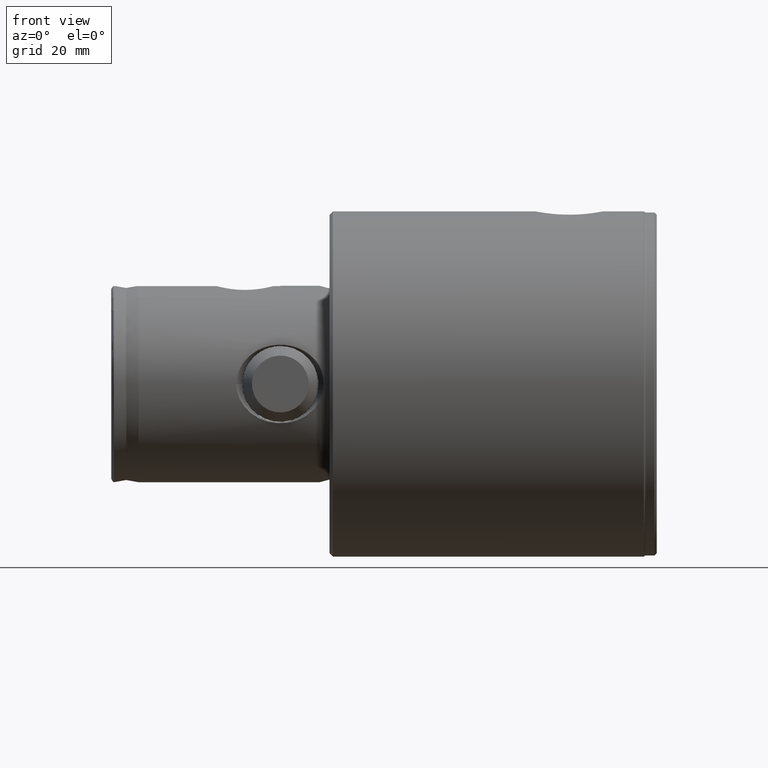
[diagram: clean part render]
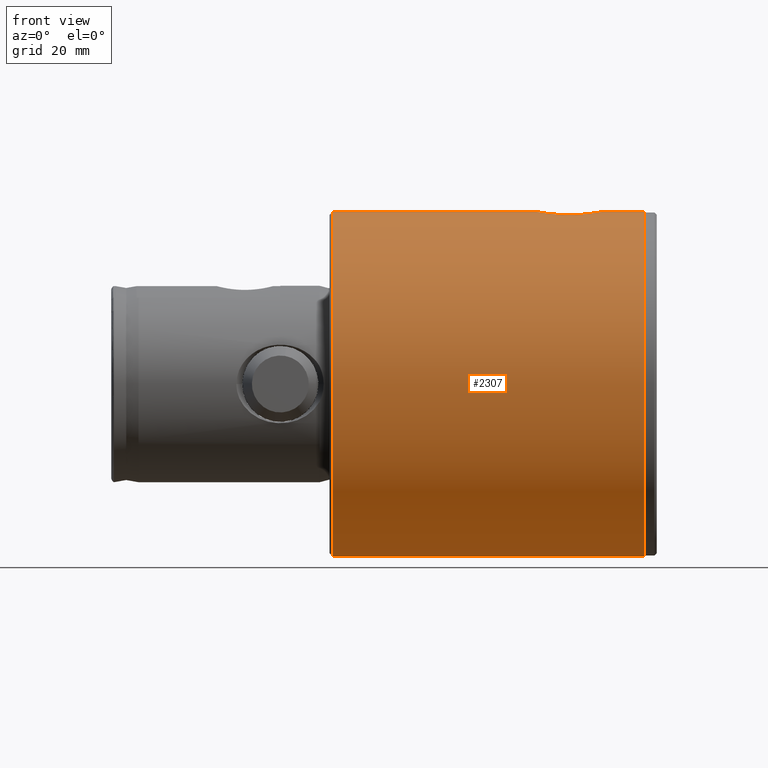
[diagram: same view with one face highlighted and labeled with its STEP entity id]
A machine part, front view. The second image highlights one B-rep face of the part: STEP entity #2307.
In plain terms, the highlighted cylindrical surface (partial cylindrical patch) has radius 31.635 mm, axis along (1, 0, -0).
Its self-contained STEP definition (entity closure, byte-faithful):
#9 = CARTESIAN_POINT ( 'NONE',  ( 31.29525941347940300, -4.632658628387614100, 11.98538508153431800 ) ) ;
#35 = CARTESIAN_POINT ( 'NONE',  ( 31.63500000000000500, 5.340185186912870700E-016, 9.900000000000000400 ) ) ;
#57 = CARTESIAN_POINT ( 'NONE',  ( 31.63500000000000500, 3.874170149102652900E-015, 60.00000000000000000 ) ) ;
#149 = DIRECTION ( 'NONE',  ( 0.0000000000000000000, 0.0000000000000000000, -1.000000000000000000 ) ) ;
#199 = DIRECTION ( 'NONE',  ( -1.000000000000000000, 0.0000000000000000000, 0.0000000000000000000 ) ) ;
#226 = CIRCLE ( 'NONE', #1285, 31.63500000000000500 ) ;
#243 = LINE ( 'NONE', #2288, #3157 ) ;
#294 = CARTESIAN_POINT ( 'NONE',  ( 31.03933184757990600, -6.110613741904253400, 15.24568282668217400 ) ) ;
#314 = CARTESIAN_POINT ( 'NONE',  ( 31.37439714490501100, -4.062481795231411400, 20.68489261969218900 ) ) ;
#503 = CARTESIAN_POINT ( 'NONE',  ( 31.63500000000000500, 3.874170149102652900E-015, 59.36499999999999500 ) ) ;
#608 = EDGE_CURVE ( 'NONE', #2838, #4690, #226, .T. ) ;
#652 = CARTESIAN_POINT ( 'NONE',  ( 31.60469406219895600, -1.398336570659457900, 10.05771800758570900 ) ) ;
#668 = CARTESIAN_POINT ( 'NONE',  ( 31.15040210047902400, -5.516791709142182800, 18.77545292970873800 ) ) ;
#685 = CARTESIAN_POINT ( 'NONE',  ( 31.41357110796464600, -3.751478874193281400, 11.16019189019578700 ) ) ;
#702 = CARTESIAN_POINT ( 'NONE',  ( 31.03141635207525800, -6.150156437826832500, 16.44979805777167700 ) ) ;
#719 = CARTESIAN_POINT ( 'NONE',  ( 31.63500000000000500, 5.340185186912870700E-016, 9.900000000000000400 ) ) ;
#782 = CARTESIAN_POINT ( 'NONE',  ( 0.0000000000000000000, 0.0000000000000000000, 59.36499999999999500 ) ) ;
#933 = CYLINDRICAL_SURFACE ( 'NONE', #1469, 31.63500000000000500 ) ;
#1026 = CARTESIAN_POINT ( 'NONE',  ( 31.63500000000000500, 3.874170149102652900E-015, 2.365084985441947600 ) ) ;
#1042 = CARTESIAN_POINT ( 'NONE',  ( 31.48503807696849300, -3.081818450620238600, 21.37594886113464900 ) ) ;
#1055 = CARTESIAN_POINT ( 'NONE',  ( 31.63308556009322800, -0.4023440089630430600, 22.19017583239642400 ) ) ;
#1066 = CARTESIAN_POINT ( 'NONE',  ( 31.63500000000000500, -0.4073891727682836800, 9.900000000000002100 ) ) ;
#1069 = ORIENTED_EDGE ( 'NONE', *, *, #2167, .F. ) ;
#1085 = CARTESIAN_POINT ( 'NONE',  ( 31.62537399128934000, -0.8060413542789127700, 22.15032272010963500 ) ) ;
#1285 = AXIS2_PLACEMENT_3D ( 'NONE', #782, #1510, #3034 ) ;
#1394 = CARTESIAN_POINT ( 'NONE',  ( 31.57493088525199100, -1.983924495428740300, 21.88511197160051900 ) ) ;
#1425 = CARTESIAN_POINT ( 'NONE',  ( 31.20099893783314100, -5.223369567607385000, 19.30252691692113100 ) ) ;
#1441 = CARTESIAN_POINT ( 'NONE',  ( 31.41338561823084400, -3.752917442960874300, 20.93858992016836500 ) ) ;
#1450 = EDGE_CURVE ( 'NONE', #4575, #2172, #1708, .T. ) ;
#1469 = AXIS2_PLACEMENT_3D ( 'NONE', #3440, #3846, #199 ) ;
#1510 = DIRECTION ( 'NONE',  ( -0.0000000000000000000, -0.0000000000000000000, -1.000000000000000000 ) ) ;
#1544 = CARTESIAN_POINT ( 'NONE',  ( 0.0000000000000000000, 0.0000000000000000000, 2.365084985441947600 ) ) ;
#1602 = LINE ( 'NONE', #2223, #2014 ) ;
#1708 = B_SPLINE_CURVE_WITH_KNOTS ( 'NONE', 3,
 ( #719, #1066, #2878, #652, #1770, #3956, #3581, #2500, #2185, #685, #2898, #9, #4687, #3270, #4299, #3595, #3938, #1739, #4341, #294, #4313, #702, #2866, #3972, #2124, #4665, #668, #2433, #1425, #2157, #3233, #314, #1441, #2529, #1042, #3626, #3244, #1394, #1755, #3259, #1085, #1055, #3608, #3986 ),
 .UNSPECIFIED., .F., .F.,
 ( 4, 2, 2, 2, 2, 2, 2, 2, 2, 2, 2, 2, 2, 2, 2, 2, 2, 2, 2, 2, 2, 4 ),
 ( 8.025716114139253500E-019, 0.001204603437407816200, 0.001806905156111723300, 0.002409206874815630600, 0.003613810312223445300, 0.004818413749631259500, 0.006023017187039075500, 0.007227620624446889700, 0.007829922343150797300, 0.008432224061854704000, 0.009636827499262513900, 0.01084143093667032400, 0.01204603437407813400, 0.01264833609278203900, 0.01325063781148594500, 0.01445524124889375200, 0.01565984468630156000, 0.01626214640500546800, 0.01686444812370937700, 0.01806905156111719400, 0.01867135327982110500, 0.01927365499852501400 ),
 .UNSPECIFIED. ) ;
#1739 = CARTESIAN_POINT ( 'NONE',  ( 31.07196948833892900, -5.942179939494876900, 14.45200307527518500 ) ) ;
#1755 = CARTESIAN_POINT ( 'NONE',  ( 31.59696258510547700, -1.600493870638747500, 22.00175022956920800 ) ) ;
#1770 = CARTESIAN_POINT ( 'NONE',  ( 31.59543492066755400, -1.593505913445418400, 10.10659071127523800 ) ) ;
#1884 = FACE_OUTER_BOUND ( 'NONE', #1928, .T. ) ;
#1928 = EDGE_LOOP ( 'NONE', ( #2105, #2585, #4680, #4354, #1069, #2026 ) ) ;
#2014 = VECTOR ( 'NONE', #4357, 1000.000000000000000 ) ;
#2026 = ORIENTED_EDGE ( 'NONE', *, *, #1450, .T. ) ;
#2069 = LINE ( 'NONE', #57, #2694 ) ;
#2105 = ORIENTED_EDGE ( 'NONE', *, *, #2721, .F. ) ;
#2124 = CARTESIAN_POINT ( 'NONE',  ( 31.09244529378339200, -5.835902214133160000, 18.03184009183793500 ) ) ;
#2157 = CARTESIAN_POINT ( 'NONE',  ( 31.25563113712986800, -4.889738710152639300, 19.80140497505248800 ) ) ;
#2167 = EDGE_CURVE ( 'NONE', #4575, #3980, #243, .T. ) ;
#2172 = VERTEX_POINT ( 'NONE', #2312 ) ;
#2185 = CARTESIAN_POINT ( 'NONE',  ( 31.48614300239824400, -3.083641083394389200, 10.71380521691460300 ) ) ;
#2217 = CIRCLE ( 'NONE', #3651, 31.63500000000000500 ) ;
#2223 = CARTESIAN_POINT ( 'NONE',  ( -31.63500000000000500, 0.0000000000000000000, 60.00000000000000000 ) ) ;
#2255 = DIRECTION ( 'NONE',  ( 1.000000000000000000, 0.0000000000000000000, 0.0000000000000000000 ) ) ;
#2288 = CARTESIAN_POINT ( 'NONE',  ( 31.63500000000000500, 3.874170149102652900E-015, 60.00000000000000000 ) ) ;
#2307 = ADVANCED_FACE ( 'NONE', ( #1884 ), #933, .T. ) ;
#2312 = CARTESIAN_POINT ( 'NONE',  ( 31.63500000000000500, 3.874170848837842500E-015, 22.19999999999999900 ) ) ;
#2433 = CARTESIAN_POINT ( 'NONE',  ( 31.18348704038253100, -5.326600959888283500, 19.13065036124437400 ) ) ;
#2500 = CARTESIAN_POINT ( 'NONE',  ( 31.51912987192450500, -2.730747091259799300, 10.52479086530721600 ) ) ;
#2529 = CARTESIAN_POINT ( 'NONE',  ( 31.46765019519722600, -3.253952408386179900, 21.27248445754228000 ) ) ;
#2585 = ORIENTED_EDGE ( 'NONE', *, *, #608, .T. ) ;
#2694 = VECTOR ( 'NONE', #3690, 1000.000000000000000 ) ;
#2721 = EDGE_CURVE ( 'NONE', #2838, #2172, #2069, .T. ) ;
#2838 = VERTEX_POINT ( 'NONE', #503 ) ;
#2866 = CARTESIAN_POINT ( 'NONE',  ( 31.03947014768490200, -6.109906264419069400, 16.85844999069621200 ) ) ;
#2878 = CARTESIAN_POINT ( 'NONE',  ( 31.62713939424492800, -0.8077787179375980300, 9.940077896677243200 ) ) ;
#2898 = CARTESIAN_POINT ( 'NONE',  ( 31.37379658249251300, -4.066900014080239600, 11.41934727300112200 ) ) ;
#3034 = DIRECTION ( 'NONE',  ( 1.000000000000000000, 0.0000000000000000000, 0.0000000000000000000 ) ) ;
#3073 = EDGE_CURVE ( 'NONE', #4690, #3513, #1602, .T. ) ;
#3157 = VECTOR ( 'NONE', #149, 1000.000000000000000 ) ;
#3195 = EDGE_CURVE ( 'NONE', #3513, #3980, #2217, .T. ) ;
#3233 = CARTESIAN_POINT ( 'NONE',  ( 31.29503887849007500, -4.634338802526856100, 20.11311355933571200 ) ) ;
#3244 = CARTESIAN_POINT ( 'NONE',  ( 31.53328817192267800, -2.541595959133240400, 21.65386357896827400 ) ) ;
#3259 = CARTESIAN_POINT ( 'NONE',  ( 31.61956420439397100, -1.007712549706079500, 22.12022390636846900 ) ) ;
#3270 = CARTESIAN_POINT ( 'NONE',  ( 31.18248670498846300, -5.336443718708031800, 12.96644610495335600 ) ) ;
#3357 = DIRECTION ( 'NONE',  ( 0.0000000000000000000, 0.0000000000000000000, 1.000000000000000000 ) ) ;
#3362 = CARTESIAN_POINT ( 'NONE',  ( -31.63500000000000500, 0.0000000000000000000, 59.36499999999999500 ) ) ;
#3440 = CARTESIAN_POINT ( 'NONE',  ( 0.0000000000000000000, 0.0000000000000000000, 60.00000000000000000 ) ) ;
#3513 = VERTEX_POINT ( 'NONE', #4414 ) ;
#3581 = CARTESIAN_POINT ( 'NONE',  ( 31.56086950778205100, -2.172456340797518100, 10.29295758553424100 ) ) ;
#3595 = CARTESIAN_POINT ( 'NONE',  ( 31.10684208921751900, -5.757055265551832300, 13.87769713392675900 ) ) ;
#3608 = CARTESIAN_POINT ( 'NONE',  ( 31.63499999999999800, -0.2009505536041552900, 22.20000000000000300 ) ) ;
#3626 = CARTESIAN_POINT ( 'NONE',  ( 31.51787815108326300, -2.725542977868396400, 21.56677004322249000 ) ) ;
#3651 = AXIS2_PLACEMENT_3D ( 'NONE', #1544, #3357, #2255 ) ;
#3690 = DIRECTION ( 'NONE',  ( 0.0000000000000000000, 0.0000000000000000000, -1.000000000000000000 ) ) ;
#3846 = DIRECTION ( 'NONE',  ( 0.0000000000000000000, 0.0000000000000000000, -1.000000000000000000 ) ) ;
#3938 = CARTESIAN_POINT ( 'NONE',  ( 31.09417945302777800, -5.824842870027199000, 14.06649246427985000 ) ) ;
#3956 = CARTESIAN_POINT ( 'NONE',  ( 31.57354487908453700, -1.980412252729097300, 10.22408012596072900 ) ) ;
#3972 = CARTESIAN_POINT ( 'NONE',  ( 31.07006094528549800, -5.952392331260933000, 17.64798982543387500 ) ) ;
#3980 = VERTEX_POINT ( 'NONE', #1026 ) ;
#3986 = CARTESIAN_POINT ( 'NONE',  ( 31.63500000000000500, 3.874170848837842500E-015, 22.19999999999999900 ) ) ;
#4299 = CARTESIAN_POINT ( 'NONE',  ( 31.14886242980077900, -5.526837676816006400, 13.32293095349614900 ) ) ;
#4313 = CARTESIAN_POINT ( 'NONE',  ( 31.03147854516226200, -6.149842626175232100, 15.64540344784093600 ) ) ;
#4341 = CARTESIAN_POINT ( 'NONE',  ( 31.06238335323845600, -5.991927037956066300, 14.64988679874739800 ) ) ;
#4354 = ORIENTED_EDGE ( 'NONE', *, *, #3195, .T. ) ;
#4357 = DIRECTION ( 'NONE',  ( 0.0000000000000000000, 0.0000000000000000000, -1.000000000000000000 ) ) ;
#4414 = CARTESIAN_POINT ( 'NONE',  ( -31.63500000000000500, 0.0000000000000000000, 2.365084985441947600 ) ) ;
#4575 = VERTEX_POINT ( 'NONE', #35 ) ;
#4665 = CARTESIAN_POINT ( 'NONE',  ( 31.13476887076352600, -5.604066680910715800, 18.59119515908194100 ) ) ;
#4680 = ORIENTED_EDGE ( 'NONE', *, *, #3073, .T. ) ;
#4687 = CARTESIAN_POINT ( 'NONE',  ( 31.25609711018817500, -4.886870379722262600, 12.29441295156284400 ) ) ;
#4690 = VERTEX_POINT ( 'NONE', #3362 ) ;